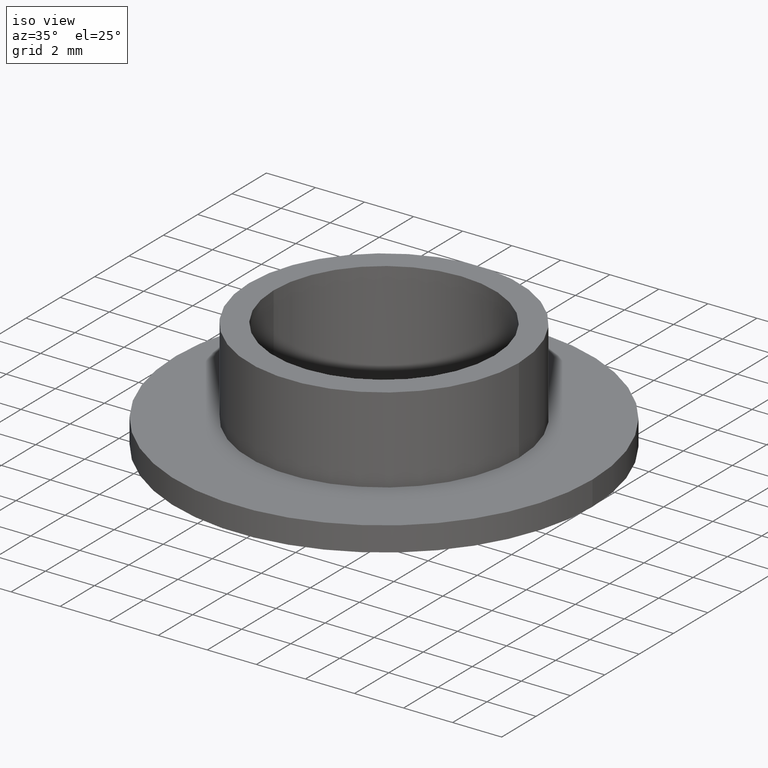
[diagram: clean part render]
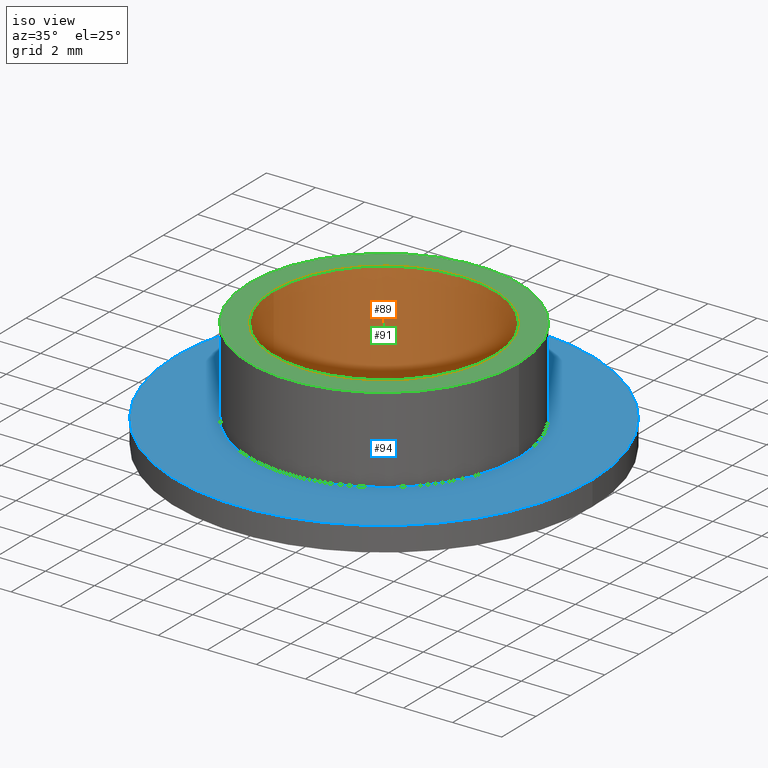
[diagram: same view with three faces highlighted in distinct colors, each labeled with its STEP entity id]
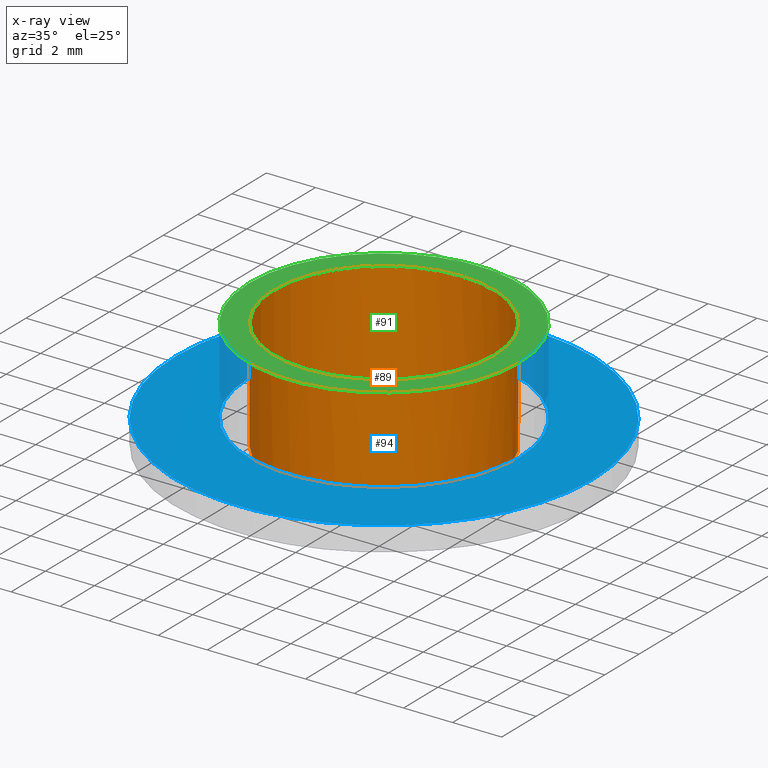
[diagram: x-ray of the same camera — body ghosted, the three highlighted faces saturated]
A machine part, iso view with three faces highlighted in distinct colors.
The next image is the same camera in x-ray (body ghosted, the three faces saturated) — at least one of them is partly hidden behind the body in this view.
Their STEP definitions:

[orange] entity #89 — the highlighted cylindrical surface (bore or boss wall) has radius 4.5 mm, axis along (0, 0, 1).
#21=FACE_OUTER_BOUND('',#27,.T.);
#27=EDGE_LOOP('',(#66,#67,#68,#69,#70));
#36=LINE('',#166,#39);
#39=VECTOR('',#136,4.5);
#42=CIRCLE('',#116,4.5);
#43=CIRCLE('',#117,4.5);
#44=CIRCLE('',#118,4.5);
#49=VERTEX_POINT('',#161);
#50=VERTEX_POINT('',#162);
#51=VERTEX_POINT('',#165);
#56=EDGE_CURVE('',#49,#50,#42,.T.);
#57=EDGE_CURVE('',#50,#49,#43,.T.);
#58=EDGE_CURVE('',#50,#51,#36,.T.);
#59=EDGE_CURVE('',#51,#51,#44,.T.);
#66=ORIENTED_EDGE('',*,*,#56,.F.);
#67=ORIENTED_EDGE('',*,*,#57,.F.);
#68=ORIENTED_EDGE('',*,*,#58,.T.);
#69=ORIENTED_EDGE('',*,*,#59,.F.);
#70=ORIENTED_EDGE('',*,*,#58,.F.);
#86=CYLINDRICAL_SURFACE('',#115,4.5);
#89=ADVANCED_FACE('',(#21),#86,.F.);
#115=AXIS2_PLACEMENT_3D('',#160,#130,#131);
#116=AXIS2_PLACEMENT_3D('',#163,#132,#133);
#117=AXIS2_PLACEMENT_3D('',#164,#134,#135);
#118=AXIS2_PLACEMENT_3D('',#167,#137,#138);
#130=DIRECTION('center_axis',(0.,0.,1.));
#131=DIRECTION('ref_axis',(1.,0.,0.));
#132=DIRECTION('center_axis',(0.,0.,-1.));
#133=DIRECTION('ref_axis',(1.,0.,0.));
#134=DIRECTION('center_axis',(0.,0.,-1.));
#135=DIRECTION('ref_axis',(1.,0.,0.));
#136=DIRECTION('',(0.,0.,-1.));
#137=DIRECTION('center_axis',(0.,0.,1.));
#138=DIRECTION('ref_axis',(1.,0.,0.));
#160=CARTESIAN_POINT('Origin',(0.,0.,-19.95914961727));
#161=CARTESIAN_POINT('',(4.5,0.,4.5));
#162=CARTESIAN_POINT('',(-4.5,-5.51091059616309E-16,4.5));
#163=CARTESIAN_POINT('Origin',(0.,0.,4.5));
#164=CARTESIAN_POINT('Origin',(0.,0.,4.5));
#165=CARTESIAN_POINT('',(-4.5,-5.51091059616309E-16,0.));
#166=CARTESIAN_POINT('',(-4.5,-5.51091059616309E-16,-19.95914961727));
#167=CARTESIAN_POINT('Origin',(0.,0.,0.));

[blue] entity #94 — the highlighted planar face has unit normal (0, 0, 1).
#17=FACE_BOUND('',#35,.T.);
#20=PLANE('',#127);
#26=FACE_OUTER_BOUND('',#34,.T.);
#34=EDGE_LOOP('',(#84));
#35=EDGE_LOOP('',(#85));
#46=CIRCLE('',#121,5.5);
#47=CIRCLE('',#124,8.5);
#53=VERTEX_POINT('',#171);
#54=VERTEX_POINT('',#176);
#62=EDGE_CURVE('',#53,#53,#46,.T.);
#63=EDGE_CURVE('',#54,#54,#47,.T.);
#84=ORIENTED_EDGE('',*,*,#63,.T.);
#85=ORIENTED_EDGE('',*,*,#62,.T.);
#94=ADVANCED_FACE('',(#26,#17),#20,.T.);
#121=AXIS2_PLACEMENT_3D('',#173,#144,#145);
#124=AXIS2_PLACEMENT_3D('',#177,#150,#151);
#127=AXIS2_PLACEMENT_3D('',#182,#157,#158);
#144=DIRECTION('center_axis',(0.,0.,-1.));
#145=DIRECTION('ref_axis',(-1.,0.,0.));
#150=DIRECTION('center_axis',(0.,0.,1.));
#151=DIRECTION('ref_axis',(-1.,0.,0.));
#157=DIRECTION('center_axis',(0.,0.,1.));
#158=DIRECTION('ref_axis',(1.,0.,0.));
#171=CARTESIAN_POINT('',(5.5,6.73555739531044E-16,1.));
#173=CARTESIAN_POINT('Origin',(0.,0.,1.));
#176=CARTESIAN_POINT('',(8.5,1.04094977927525E-15,1.));
#177=CARTESIAN_POINT('Origin',(0.,0.,1.));
#182=CARTESIAN_POINT('Origin',(-5.22127393223979E-16,-2.17690789142187E-16,
1.));

[green] entity #91 — the highlighted planar face has unit normal (0, 0, 1).
#15=FACE_BOUND('',#30,.T.);
#18=PLANE('',#122);
#23=FACE_OUTER_BOUND('',#29,.T.);
#29=EDGE_LOOP('',(#75));
#30=EDGE_LOOP('',(#76,#77));
#42=CIRCLE('',#116,4.5);
#43=CIRCLE('',#117,4.5);
#45=CIRCLE('',#120,5.5);
#49=VERTEX_POINT('',#161);
#50=VERTEX_POINT('',#162);
#52=VERTEX_POINT('',#169);
#56=EDGE_CURVE('',#49,#50,#42,.T.);
#57=EDGE_CURVE('',#50,#49,#43,.T.);
#60=EDGE_CURVE('',#52,#52,#45,.T.);
#75=ORIENTED_EDGE('',*,*,#60,.T.);
#76=ORIENTED_EDGE('',*,*,#56,.T.);
#77=ORIENTED_EDGE('',*,*,#57,.T.);
#91=ADVANCED_FACE('',(#23,#15),#18,.T.);
#116=AXIS2_PLACEMENT_3D('',#163,#132,#133);
#117=AXIS2_PLACEMENT_3D('',#164,#134,#135);
#120=AXIS2_PLACEMENT_3D('',#170,#141,#142);
#122=AXIS2_PLACEMENT_3D('',#174,#146,#147);
#132=DIRECTION('center_axis',(0.,0.,-1.));
#133=DIRECTION('ref_axis',(1.,0.,0.));
#134=DIRECTION('center_axis',(0.,0.,-1.));
#135=DIRECTION('ref_axis',(1.,0.,0.));
#141=DIRECTION('center_axis',(0.,0.,1.));
#142=DIRECTION('ref_axis',(-1.,0.,0.));
#146=DIRECTION('center_axis',(0.,0.,1.));
#147=DIRECTION('ref_axis',(1.,0.,0.));
#161=CARTESIAN_POINT('',(4.5,0.,4.5));
#162=CARTESIAN_POINT('',(-4.5,-5.51091059616309E-16,4.5));
#163=CARTESIAN_POINT('Origin',(0.,0.,4.5));
#164=CARTESIAN_POINT('Origin',(0.,0.,4.5));
#169=CARTESIAN_POINT('',(5.5,6.73555739531044E-16,4.5));
#170=CARTESIAN_POINT('Origin',(0.,0.,4.5));
#174=CARTESIAN_POINT('Origin',(-2.24345254752611E-16,8.41078048958452E-17,
4.5));